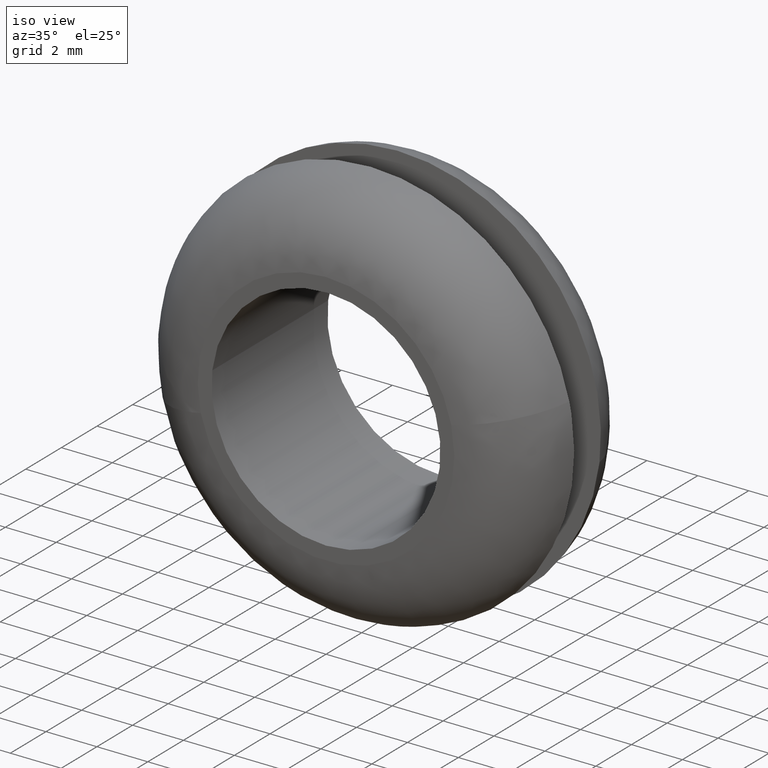
[diagram: clean part render]
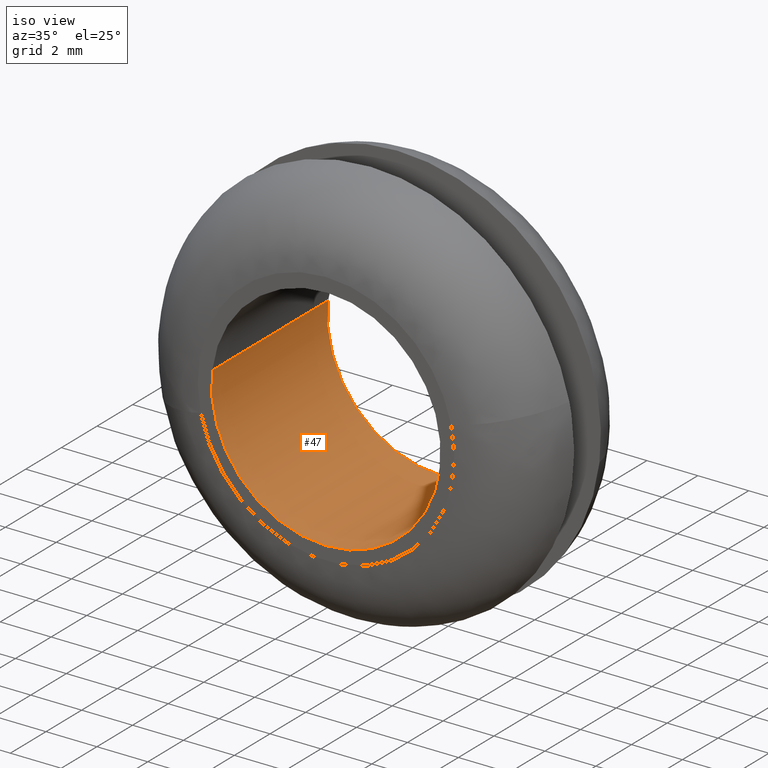
[diagram: same view with one face highlighted and labeled with its STEP entity id]
A machine part, iso view. The second image highlights one B-rep face of the part: STEP entity #47.
In plain terms, the highlighted cylindrical surface (partial cylindrical patch) has radius 4.5 mm, axis along (-0, 1, -0).
Its self-contained STEP definition (entity closure, byte-faithful):
#47=ADVANCED_FACE('',(#127),#126,.F.);
#126=CYLINDRICAL_SURFACE('',#218,4.50000000000E+000);
#127=FACE_OUTER_BOUND('',#219,.T.);
#215=CARTESIAN_POINT('',(-3.48595419141E-016,6.66250000000E+000,-7.89650400714E-015));
#216=DIRECTION('',(-1.70677333352E-016,1.00000000000E+000,-2.27197397273E-015));
#217=DIRECTION('',(-9.93009526364E-001,9.86864910778E-017,1.18034234657E-001));
#218=AXIS2_PLACEMENT_3D('',#215,#216,#217);
#219=EDGE_LOOP('',(#366,#367,#368,#369,#370,#371));
#366=ORIENTED_EDGE('',*,*,#407,.F.);
#367=ORIENTED_EDGE('',*,*,#409,.F.);
#368=ORIENTED_EDGE('',*,*,#426,.F.);
#369=ORIENTED_EDGE('',*,*,#421,.T.);
#370=ORIENTED_EDGE('',*,*,#423,.T.);
#371=ORIENTED_EDGE('',*,*,#427,.T.);
#407=EDGE_CURVE('',#509,#510,#511,.T.);
#409=EDGE_CURVE('',#517,#509,#524,.T.);
#421=EDGE_CURVE('',#607,#608,#609,.T.);
#423=EDGE_CURVE('',#608,#615,#622,.T.);
#426=EDGE_CURVE('',#607,#517,#640,.T.);
#427=EDGE_CURVE('',#615,#510,#646,.T.);
#509=VERTEX_POINT('',#731);
#510=VERTEX_POINT('',#732);
#511=CIRCLE('',#736,4.50000000000E+000);
#517=VERTEX_POINT('',#737);
#524=CIRCLE('',#745,4.50000000000E+000);
#607=VERTEX_POINT('',#801);
#608=VERTEX_POINT('',#802);
#609=CIRCLE('',#806,4.50000000000E+000);
#615=VERTEX_POINT('',#807);
#622=CIRCLE('',#815,4.50000000000E+000);
#640=(BOUNDED_CURVE() B_SPLINE_CURVE(1,(#820,#821),.UNSPECIFIED.,.F.,.F.) B_SPLINE_CURVE_WITH_KNOTS((2,2),(8.33333347523E-002,9.16666664312E-001),.UNSPECIFIED.) CURVE() GEOMETRIC_REPRESENTATION_ITEM() RATIONAL_B_SPLINE_CURVE((1.00000000000E+000,1.00000000000E+000)) REPRESENTATION_ITEM('') );
#646=(BOUNDED_CURVE() B_SPLINE_CURVE(1,(#822,#823),.UNSPECIFIED.,.F.,.F.) B_SPLINE_CURVE_WITH_KNOTS((2,2),(8.33333333333E-002,9.16666666664E-001),.UNSPECIFIED.) CURVE() GEOMETRIC_REPRESENTATION_ITEM() RATIONAL_B_SPLINE_CURVE((7.50000000000E-001,7.50000000000E-001)) REPRESENTATION_ITEM('') );
#731=CARTESIAN_POINT('',(-2.10942374679E-015,6.49999999999E+000,-4.50000000000E+000));
#732=CARTESIAN_POINT('',(4.46845099908E+000,6.50000000000E+000,-5.31926375409E-001));
#733=CARTESIAN_POINT('',(2.77111666946E-013,6.50000000000E+000,6.13287198803E-013));
#734=DIRECTION('',(3.02527720978E-013,-1.00000000000E+000,2.03344308640E-012));
#735=DIRECTION('',(-6.16728890179E-014,-2.03344308640E-012,-1.00000000000E+000));
#736=AXIS2_PLACEMENT_3D('',#733,#734,#735);
#737=CARTESIAN_POINT('',(-4.46854306288E+000,6.50000000000E+000,5.31152421835E-001));
#742=CARTESIAN_POINT('',(2.77111666946E-013,6.50000000000E+000,6.13287198803E-013));
#743=DIRECTION('',(3.02527720978E-013,-1.00000000000E+000,2.03344308640E-012));
#744=DIRECTION('',(-6.16728890179E-014,-2.03344308640E-012,-1.00000000000E+000));
#745=AXIS2_PLACEMENT_3D('',#742,#743,#744);
#801=CARTESIAN_POINT('',(-4.46854306288E+000,-1.05054214667E-015,5.31152421835E-001));
#802=CARTESIAN_POINT('',(-2.10942374679E-015,-2.86568356655E-015,-4.50000000000E+000));
#803=CARTESIAN_POINT('',(2.77111666946E-013,-9.94569773634E-016,6.13287198803E-013));
#804=DIRECTION('',(6.19502093115E-017,-1.00000000000E+000,4.15803065092E-016));
#805=DIRECTION('',(-6.16728890179E-014,-4.15803065092E-016,-1.00000000000E+000));
#806=AXIS2_PLACEMENT_3D('',#803,#804,#805);
#807=CARTESIAN_POINT('',(4.46845099908E+000,-9.38924916242E-016,-5.31926375409E-001));
#812=CARTESIAN_POINT('',(2.77111666946E-013,-9.94569773634E-016,6.13287198803E-013));
#813=DIRECTION('',(6.19502093115E-017,-1.00000000000E+000,4.15803065092E-016));
#814=DIRECTION('',(-6.16728890179E-014,-4.15803065092E-016,-1.00000000000E+000));
#815=AXIS2_PLACEMENT_3D('',#812,#813,#814);
#820=CARTESIAN_POINT('',(-4.46854286864E+000,1.10681172005E-008,5.31154055955E-001));
#821=CARTESIAN_POINT('',(-4.46854286864E+000,6.49999998165E+000,5.31154055955E-001));
#822=CARTESIAN_POINT('',(4.46854286864E+000,-1.25825276124E-015,-5.31154055955E-001));
#823=CARTESIAN_POINT('',(4.46854286864E+000,6.50000000000E+000,-5.31154055955E-001));